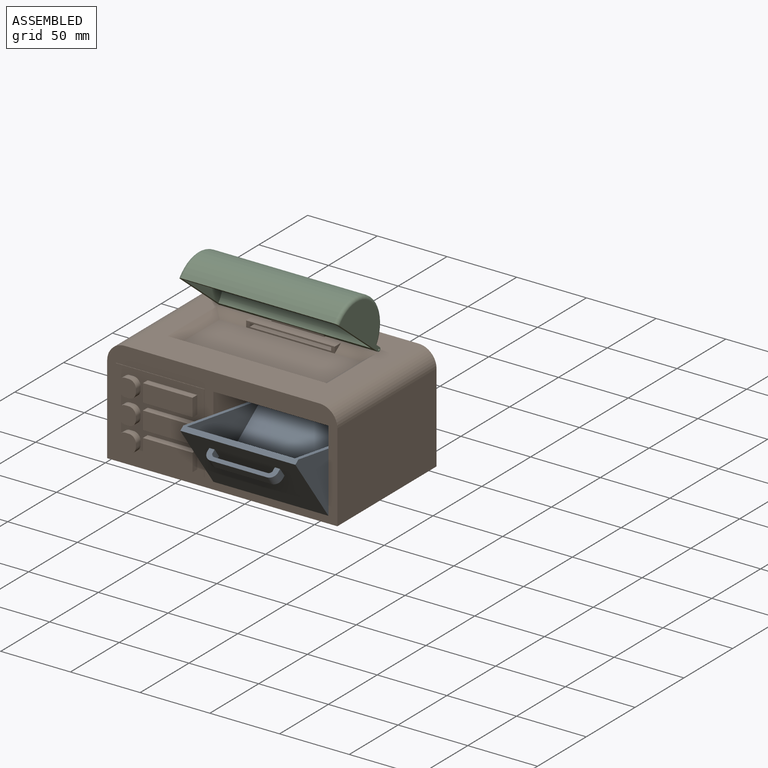
[diagram: assembled view]
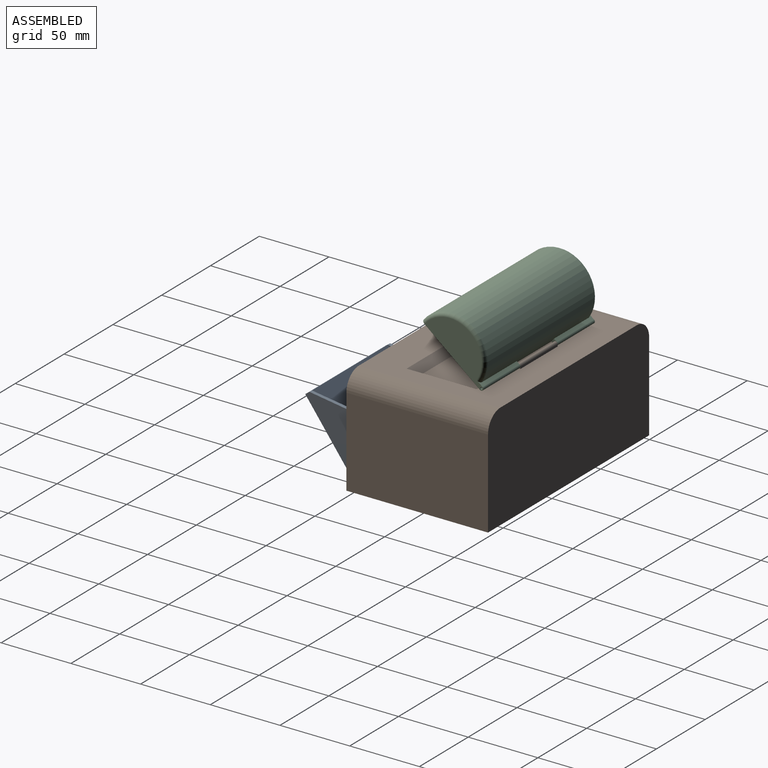
[diagram: assembled view, second angle]
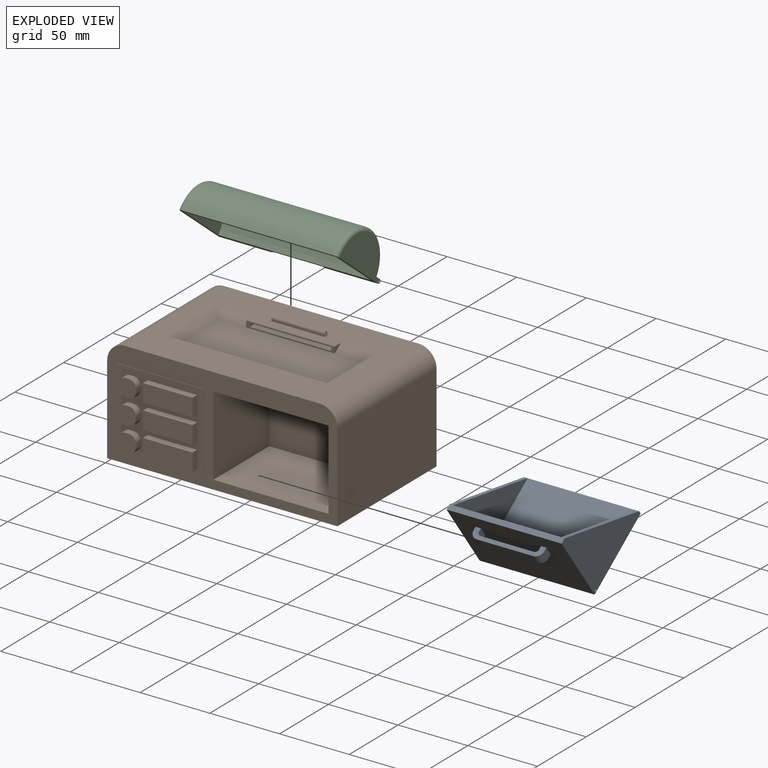
[diagram: exploded view]
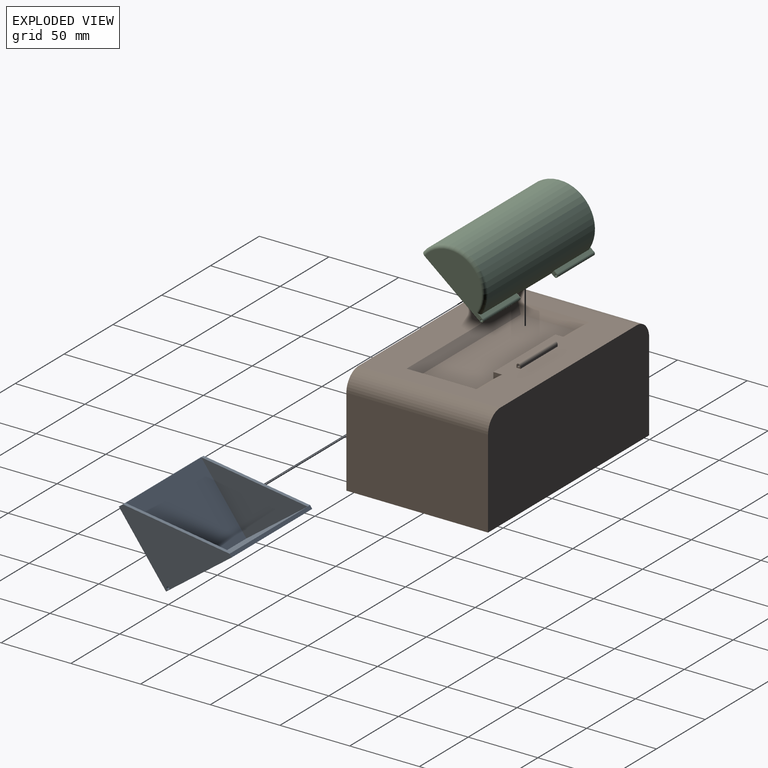
[diagram: exploded view, second angle]
ASSEMBLY  parts=3 mates=2
PART A: 25 faces, bbox 82.6x66x57.2 mm
  f0: plane 77.47x54.61mm, normal (0,1,0), area 4230.6mm2, adj f1,f5,f22,f24
  f1: plane 77.47x54.61mm, normal (0,0,1), area 4230.6mm2, adj f0,f2,f22,f24
  f2: plane 82.55x2.54mm, normal (0,1,0), area 209.7mm2, adj f1,f3,f6,f7,f21,f23
  f3: plane 82.55x58.42mm, normal (0,0,-1), area 4822.6mm2, adj f2,f4,f6,f7
  f4: plane 82.55x57.15mm, normal (0,-1,0), area 4659.7mm2, adj f3,f5,f6,f7,f9,f10,f11,f12
  f5: plane 82.55x3.81mm, normal (0,0,1), area 314.5mm2, adj f0,f4,f6,f7,f21,f23
  f6: plane 58.42x57.15mm, normal (-1,0,0), area 1844.3mm2, adj f2,f3,f4,f5,f8,f21
  f7: plane 58.42x57.15mm, normal (1,0,0), area 1844.3mm2, adj f2,f3,f4,f5,f8,f23
  f8: cylinder r=1.02mm len=82.55mm, axis (1,0,0), area 527mm2, adj f6,f7
  f9: plane 50.8x7.62mm, normal (0,0,1), area 170mm2, adj f4,f10,f12,f13,f14,f15,f16,f17
  f10: plane 7.62x2.54mm, normal (-1,0,0), area 19.4mm2, adj f4,f9,f11,f14
  f11: plane 50.8x7.62mm, normal (0,0,-1), area 170mm2, adj f4,f10,f12,f13,f14,f15,f16,f17
  f12: plane 7.62x2.54mm, normal (1,0,0), area 19.4mm2, adj f4,f9,f11,f15
  f13: plane 40.64x7.62mm, normal (0,-1,0), area 309.7mm2, adj f9,f11,f14,f15
  f14: cylinder r=5.08mm len=7.62mm, axis (0,0,1), area 60.8mm2, adj f9,f10,f11,f13
  f15: cylinder r=5.08mm len=7.62mm, axis (0,0,-1), area 60.8mm2, adj f9,f11,f12,f13
  f16: plane 7.62x3.08mm, normal (1,0,0), area 23.4mm2, adj f4,f9,f11,f17
  f17: cylinder r=2.72mm len=7.62mm, axis (0,0,1), area 25mm2, adj f9,f11,f16,f18
  f18: plane 38.1x7.62mm, normal (0,1,0), area 290.3mm2, adj f9,f11,f17,f19
  f19: cylinder r=2.72mm len=7.62mm, axis (0,0,1), area 25mm2, adj f9,f11,f18,f20
  f20: plane 7.62x3.08mm, normal (-1,0,0), area 23.4mm2, adj f4,f9,f11,f19
  f21: plane 54.61x54.61mm, normal (0,0.71,0.71), area 196.2mm2, adj f2,f5,f6,f22
  f22: plane 54.61x54.61mm, normal (1,0,0), area 1491.1mm2, adj f0,f1,f21
  f23: plane 54.61x54.61mm, normal (0,0.71,0.71), area 196.2mm2, adj f2,f5,f7,f24
  f24: plane 54.61x54.61mm, normal (-1,0,0), area 1491.1mm2, adj f0,f1,f23
PART B: 82 faces, bbox 165.1x106.7x79.2 mm
  f0: plane 139.7x101.6mm, normal (0,0,1), area 8677.9mm2, adj f1,f2,f3,f4,f8,f9,f11,f12
  f1: plane 165.1x76.2mm, normal (0,-1,0), area 4164.6mm2, adj f0,f5,f6,f7,f8,f9,f22,f23
  f2: plane 63.5x4.45mm, normal (0,-1,0), area 133.9mm2, adj f0,f10,f15,f16,f17,f18,f19,f20
  f3: plane 25.4x6.35mm, normal (0,-0.57,0.82), area 172.3mm2, adj f0,f10,f12,f15
  f4: plane 165.1x76.2mm, normal (0,1,0), area 12511.4mm2, adj f0,f5,f6,f7,f8,f9
  f5: plane 101.6x63.5mm, normal (-1,0,0), area 6451.6mm2, adj f1,f4,f7,f8
  f6: plane 101.6x63.5mm, normal (1,0,0), area 6451.6mm2, adj f1,f4,f7,f9
  f7: plane 165.1x101.6mm, normal (0,0,-1), area 16774.2mm2, adj f1,f4,f5,f6
  f8: cylinder r=12.7mm len=101.6mm, axis (0,-1,0), area 2026.8mm2, adj f0,f1,f4,f5
  f9: cylinder r=12.7mm len=101.6mm, axis (0,1,0), area 2026.8mm2, adj f0,f1,f4,f6
  f10: plane 101.6x38.1mm, normal (0,0,1), area 3871mm2, adj f2,f3,f11,f12,f13,f14
  f11: plane 25.4x6.35mm, normal (0,-0.57,0.82), area 172.3mm2, adj f0,f10,f14,f16
  f12: plane 50.8x6.35mm, normal (-0.57,0,0.82), area 344.5mm2, adj f0,f3,f10,f13
  f13: plane 114.3x6.35mm, normal (0,0.57,0.82), area 836.7mm2, adj f0,f10,f12,f14
  f14: plane 50.8x6.35mm, normal (0.57,0,0.82), area 344.5mm2, adj f0,f10,f11,f13
  f15: plane 6.35x4.45mm, normal (1,0,0), area 14.1mm2, adj f0,f2,f3
  f16: plane 6.35x4.45mm, normal (-1,0,0), area 14.1mm2, adj f0,f2,f11
  f17: plane 58.42x25.4mm, normal (0,0,-1), area 1483.9mm2, adj f2,f18,f20,f21
  f18: plane 25.4x2.54mm, normal (1,0,0), area 64.5mm2, adj f2,f17,f19,f21
  f19: plane 58.42x25.4mm, normal (0,0,1), area 1483.9mm2, adj f2,f18,f20,f21
  f20: plane 25.4x2.54mm, normal (-1,0,0), area 64.5mm2, adj f2,f17,f19,f21
  f21: plane 58.42x2.54mm, normal (0,-1,0), area 148.4mm2, adj f17,f18,f19,f20
  f22: plane 82.55x57.15mm, normal (0,0,1), area 4717.7mm2, adj f1,f23,f25,f26
  f23: plane 57.15x57.15mm, normal (-1,0,0), area 3262.9mm2, adj f1,f22,f24,f26,f27
  f24: plane 82.55x57.15mm, normal (0,0,-1), area 4717.7mm2, adj f1,f23,f25,f26
  f25: plane 57.15x57.15mm, normal (1,0,0), area 3266.1mm2, adj f1,f22,f24,f26
  f26: plane 82.55x57.15mm, normal (0,-1,0), area 4717.7mm2, adj f22,f23,f24,f25
  f27: cylinder r=1.02mm len=2.79mm, axis (-1,0,0), area 17.8mm2, adj f23,f28
  f28: plane 2.03x2.03mm, normal (-1,0,0), area 3.2mm2, adj f27
  f29: plane 63.5x0.25mm, normal (0,0,-1), area 16.1mm2, adj f1,f30,f32,f33
  f30: plane 57.15x0.25mm, normal (1,0,0), area 14.5mm2, adj f1,f29,f31,f33
  f31: plane 63.5x0.25mm, normal (0,0,1), area 16.1mm2, adj f1,f30,f32,f33
  f32: plane 57.15x0.25mm, normal (-1,0,0), area 14.5mm2, adj f1,f29,f31,f33
  f33: plane 63.5x57.15mm, normal (0,-1,0), area 1856.8mm2, adj f29,f30,f31,f32,f34,f35,f36,f37
  f34: plane 4.83x2.54mm, normal (0,0,1), area 12.3mm2, adj f33,f38,f72,f75
  f35: plane 4.83x2.54mm, normal (-1,0,0), area 12.3mm2, adj f33,f38,f74,f75
  f36: plane 4.83x2.54mm, normal (0,0,-1), area 12.3mm2, adj f33,f38,f73,f74
  f37: plane 4.83x2.54mm, normal (1,0,0), area 12.3mm2, adj f33,f38,f72,f73
  f38: plane 12.7x12.7mm, normal (0,-1,0), area 139.1mm2, adj f34,f35,f36,f37,f72,f73,f74,f75
  f39: plane 4.83x2.54mm, normal (0,0,1), area 12.3mm2, adj f33,f43,f68,f71
  f40: plane 4.83x2.54mm, normal (-1,0,0), area 12.3mm2, adj f33,f43,f68,f69
  f41: plane 4.83x2.54mm, normal (0,0,-1), area 12.3mm2, adj f33,f43,f69,f70
  f42: plane 4.83x2.54mm, normal (1,0,0), area 12.3mm2, adj f33,f43,f70,f71
  f43: plane 12.7x12.7mm, normal (0,-1,0), area 139.1mm2, adj f39,f40,f41,f42,f68,f69,f70,f71
  f44: plane 4.83x2.54mm, normal (0,0,1), area 12.3mm2, adj f33,f48,f64,f67
  f45: plane 4.83x2.54mm, normal (-1,0,0), area 12.3mm2, adj f33,f48,f66,f67
  f46: plane 4.83x2.54mm, normal (0,0,-1), area 12.3mm2, adj f33,f48,f65,f66
  f47: plane 4.83x2.54mm, normal (1,0,0), area 12.3mm2, adj f33,f48,f64,f65
  f48: plane 12.7x12.7mm, normal (0,-1,0), area 139.1mm2, adj f44,f45,f46,f47,f64,f65,f66,f67
  f49: plane 35.56x4.83mm, normal (0,0,1), area 171.6mm2, adj f33,f50,f52,f53
  f50: plane 12.7x4.83mm, normal (-1,0,0), area 61.3mm2, adj f33,f49,f51,f53
  f51: plane 35.56x4.83mm, normal (0,0,-1), area 171.6mm2, adj f33,f50,f52,f53
  f52: plane 12.7x4.83mm, normal (1,0,0), area 61.3mm2, adj f33,f49,f51,f53
  f53: plane 35.56x12.7mm, normal (0,-1,0), area 451.6mm2, adj f49,f50,f51,f52
  f54: plane 35.56x4.83mm, normal (0,0,1), area 171.6mm2, adj f33,f55,f57,f58
  f55: plane 12.7x4.83mm, normal (-1,0,0), area 61.3mm2, adj f33,f54,f56,f58
  f56: plane 35.56x4.83mm, normal (0,0,-1), area 171.6mm2, adj f33,f55,f57,f58
  f57: plane 12.7x4.83mm, normal (1,0,0), area 61.3mm2, adj f33,f54,f56,f58
  f58: plane 35.56x12.7mm, normal (0,-1,0), area 451.6mm2, adj f54,f55,f56,f57
  f59: plane 35.56x4.83mm, normal (0,0,1), area 171.6mm2, adj f33,f60,f62,f63
  f60: plane 12.7x4.83mm, normal (-1,0,0), area 61.3mm2, adj f33,f59,f61,f63
  f61: plane 35.56x4.83mm, normal (0,0,-1), area 171.6mm2, adj f33,f60,f62,f63
  f62: plane 12.7x4.83mm, normal (1,0,0), area 61.3mm2, adj f33,f59,f61,f63
  f63: plane 35.56x12.7mm, normal (0,-1,0), area 451.6mm2, adj f59,f60,f61,f62
  f64: cylinder r=5.08mm len=5.08mm, axis (0,1,0), area 38.5mm2, adj f33,f44,f47,f48
  f65: cylinder r=5.08mm len=5.08mm, axis (0,-1,0), area 38.5mm2, adj f33,f46,f47,f48
  f66: cylinder r=5.08mm len=5.08mm, axis (0,1,0), area 38.5mm2, adj f33,f45,f46,f48
  f67: cylinder r=5.08mm len=5.08mm, axis (0,-1,0), area 38.5mm2, adj f33,f44,f45,f48
  f68: cylinder r=5.08mm len=5.08mm, axis (0,-1,0), area 38.5mm2, adj f33,f39,f40,f43
  f69: cylinder r=5.08mm len=5.08mm, axis (0,1,0), area 38.5mm2, adj f33,f40,f41,f43
  f70: cylinder r=5.08mm len=5.08mm, axis (0,-1,0), area 38.5mm2, adj f33,f41,f42,f43
  f71: cylinder r=5.08mm len=5.08mm, axis (0,1,0), area 38.5mm2, adj f33,f39,f42,f43
  f72: cylinder r=5.08mm len=5.08mm, axis (0,1,0), area 38.5mm2, adj f33,f34,f37,f38
  f73: cylinder r=5.08mm len=5.08mm, axis (0,-1,0), area 38.5mm2, adj f33,f36,f37,f38
  f74: cylinder r=5.08mm len=5.08mm, axis (0,1,0), area 38.5mm2, adj f33,f35,f36,f38
  f75: cylinder r=5.08mm len=5.08mm, axis (0,-1,0), area 38.5mm2, adj f33,f34,f35,f38
  f76: plane 2.97x2.95mm, normal (-1,0,0), area 6mm2, adj f0,f77,f79,f80,f81
  f77: plane 38.1x1.5mm, normal (0,1,0), area 57.1mm2, adj f0,f76,f78,f80
  f78: plane 2.97x2.95mm, normal (1,0,0), area 6mm2, adj f0,f77,f79,f80,f81
  f79: cylinder r=0.76mm len=38.1mm, axis (1,0,0), area 182.4mm2, adj f76,f78
  f80: cylinder r=1.47mm len=38.1mm, axis (1,0,0), area 176.5mm2, adj f76,f77,f78,f81
  f81: plane 38.1x1.5mm, normal (0,-1,0), area 57.1mm2, adj f0,f76,f78,f80
PART C: 25 faces, bbox 114.3x57.2x27.8 mm
  f0: plane 46.02x2.54mm, normal (0,0,-1), area 116.9mm2, adj f2,f10,f11,f24
  f1: plane 38.1x5.26mm, normal (0,0,1), area 104.4mm2, adj f7,f11,f12,f19,f21
  f2: plane 114.3x2.54mm, normal (0,0,-1), area 284.1mm2, adj f0,f5,f8,f9,f11,f14,f17,f18
  f3: cylinder r=1.47mm len=38.1mm, axis (1,0,0), area 176.5mm2, adj f4,f8,f15,f17
  f4: plane 38.1x2.54mm, normal (0,0.01,-1), area 96.8mm2, adj f3,f5,f8,f17
  f5: plane 38.1x0.02mm, normal (0,-1,0), area 0.7mm2, adj f2,f4,f8,f17
  f6: cylinder r=0.76mm len=38.1mm, axis (1,0,0), area 182.4mm2, adj f8,f17
  f7: cylinder r=25.55mm len=109.22mm, axis (1,0,0), area 8461.4mm2, adj f1,f10,f15,f18,f20,f21
  f8: plane 52.58x23.11mm, normal (-1,0,0), area 852.3mm2, adj f2,f3,f4,f5,f6,f9,f15,f20
  f9: plane 46.02x2.54mm, normal (0,0,-1), area 116.9mm2, adj f2,f8,f10,f23
  f10: plane 114.31x2.55mm, normal (0,0,-1), area 287.6mm2, adj f0,f7,f9,f20,f21,f22
  f11: plane 52.58x23.11mm, normal (1,0,0), area 852.3mm2, adj f0,f1,f2,f12,f13,f14,f16,f21
  f12: cylinder r=1.47mm len=38.1mm, axis (1,0,0), area 176.5mm2, adj f1,f11,f13,f19
  f13: plane 38.1x2.54mm, normal (0,0.01,-1), area 96.8mm2, adj f11,f12,f14,f19
  f14: plane 38.1x0.02mm, normal (0,-1,0), area 0.7mm2, adj f2,f11,f13,f19
  f15: plane 38.1x5.26mm, normal (0,0,1), area 104.4mm2, adj f3,f7,f8,f17,f20
  f16: cylinder r=0.76mm len=38.1mm, axis (1,0,0), area 182.4mm2, adj f11,f19
  f17: plane 4.18x2.97mm, normal (1,0,0), area 9.6mm2, adj f2,f3,f4,f5,f6,f15,f18
  f18: plane 38.1x2.96mm, normal (0,1,0), area 112.6mm2, adj f2,f7,f17,f19
  f19: plane 4.18x2.97mm, normal (-1,0,0), area 9.6mm2, adj f1,f2,f12,f13,f14,f16,f18
  f20: torus R=23.01mm, axis (-1,0,0), area 297.5mm2, adj f7,f8,f10,f15
  f21: torus R=23.01mm, axis (-1,0,0), area 297.5mm2, adj f1,f7,f10,f11
  f22: cylinder r=23.01mm len=109.22mm, axis (1,0,0), area 7913.4mm2, adj f2,f10,f23,f24
  f23: plane 46.02x23.11mm, normal (1,0,0), area 835.5mm2, adj f9,f22
  f24: plane 46.02x23.11mm, normal (-1,0,0), area 835.5mm2, adj f0,f22
PLACE A rot(axis=(1,0,0),36.4deg) t=(-69.42,-94.89,-21.19)mm
PLACE B t=(-69.42,-43.27,-41.09)mm fixed
PLACE C rot(axis=(-1,0,0),38.9deg) t=(-69.42,-39.43,-27.2)mm
MATE revolute B.f27 <-> A.f8  axis (-1,0,0) through (10.5,-99.35,-109.67)mm
MATE revolute C.f3 <-> B.f79  axis (-1,0,0) through (-46.65,-21.67,-39.59)mm
